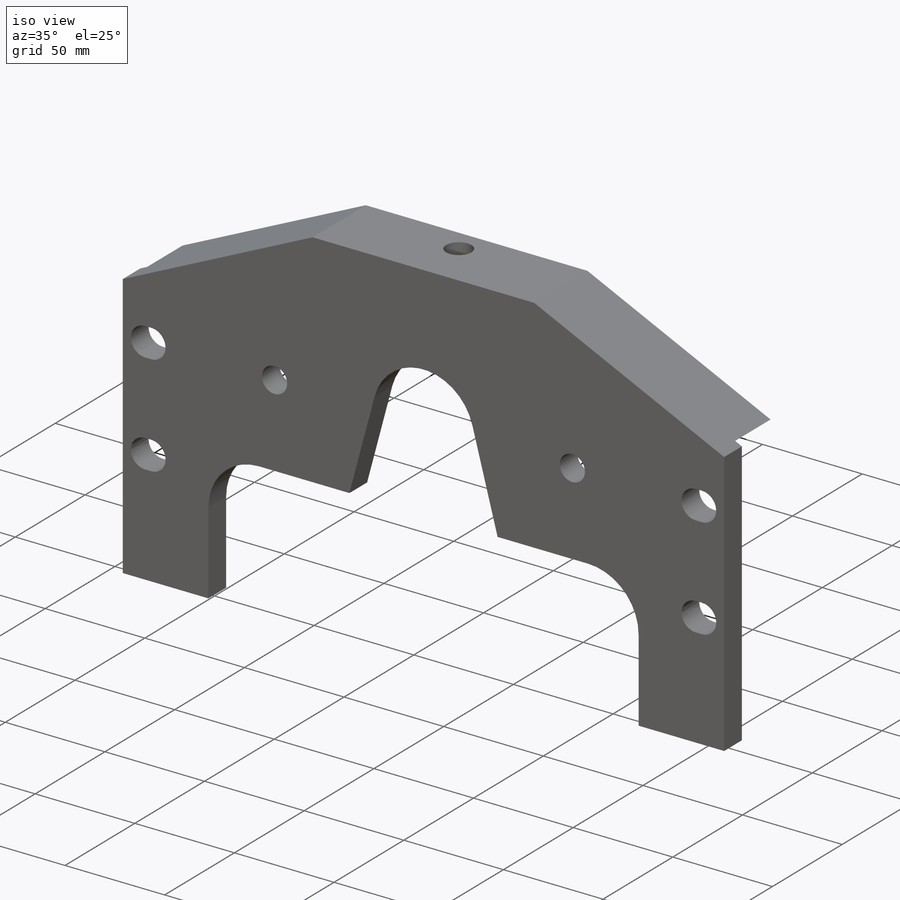
[diagram: iso view]
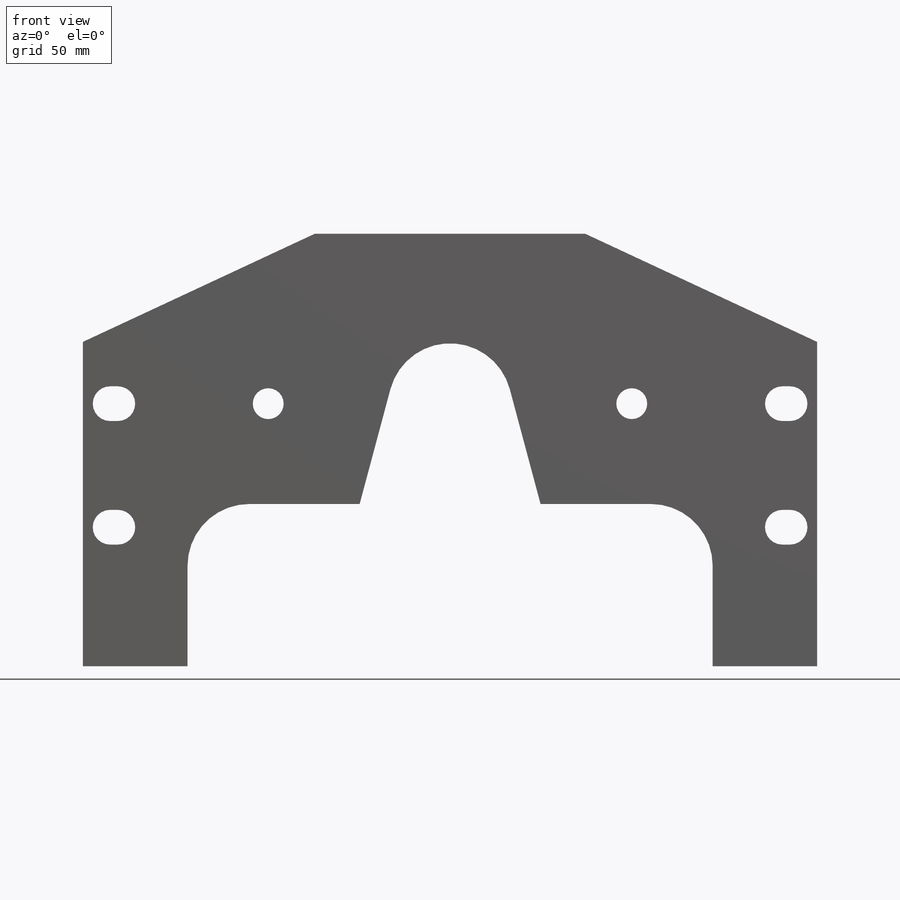
[diagram: front view]
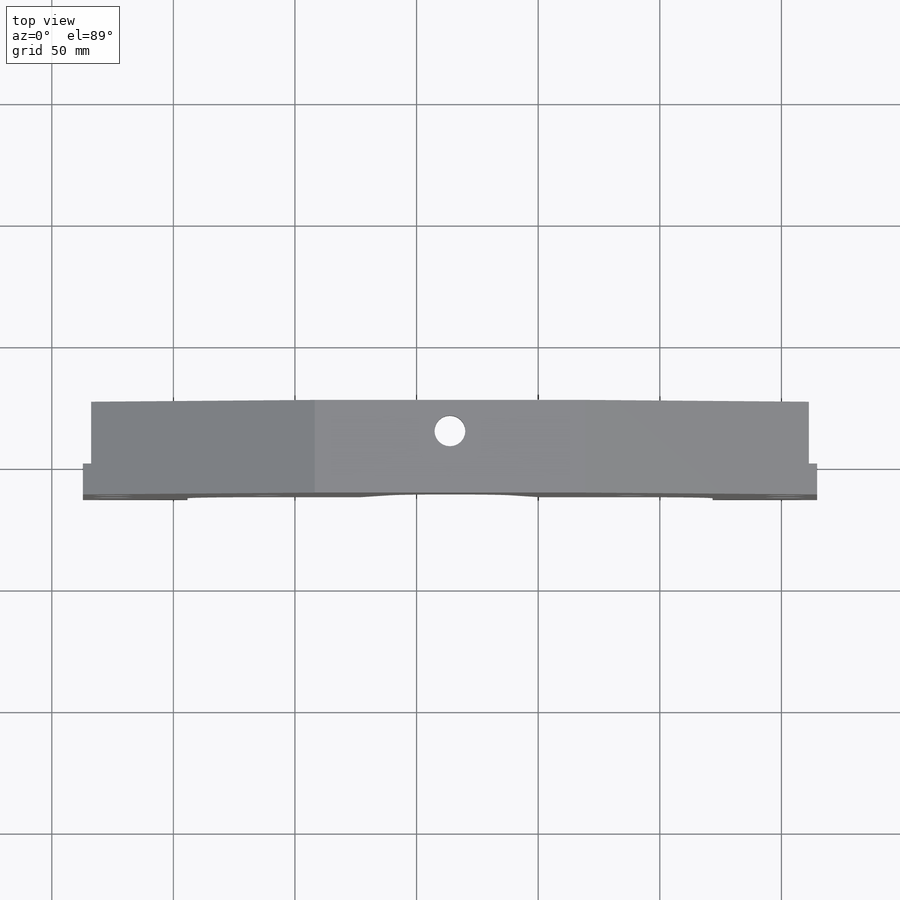
[diagram: top view]
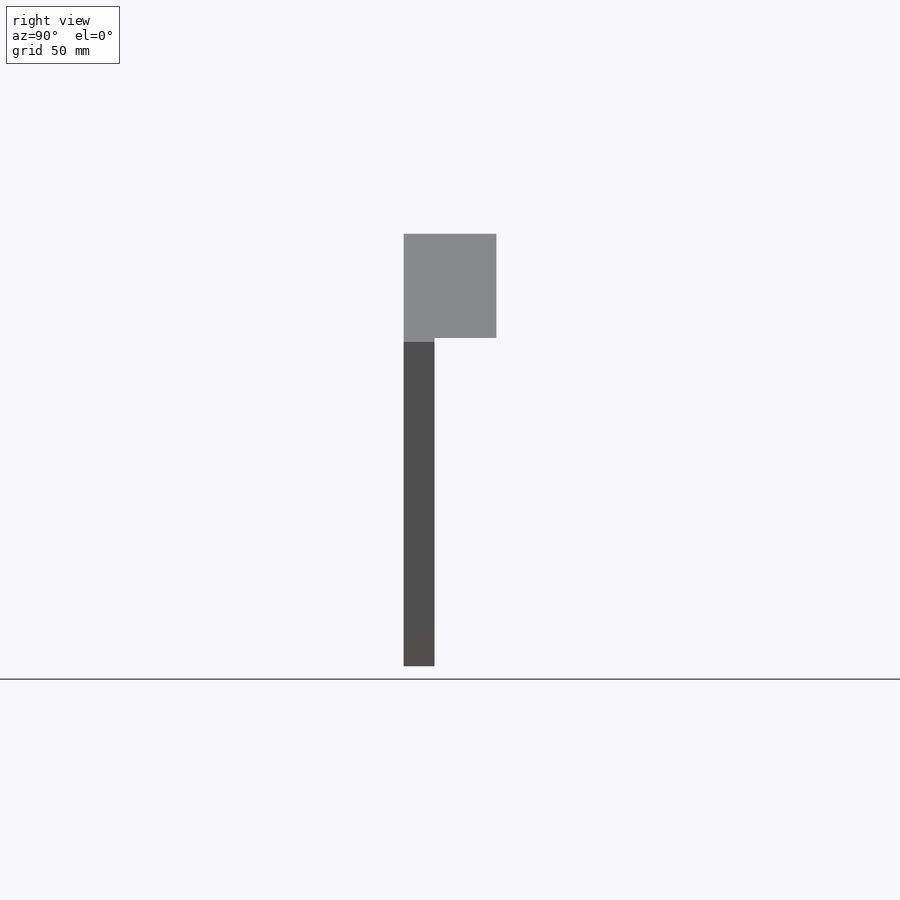
[diagram: right view]
SOLIDWORKS PART (.sldprt)
format: sldprt  version: not decoded by parser v0  size: 383,488 bytes
history: native  units: mm
features: sketch x12, cut_extrude x4, hole x3, plane x3, extrude x2, mirror x2, material x1 (+14 scaffold rows collapsed)
feature tree (41):
  scaffold x14  (default folders/planes/origin — collapsed)
  material  "AISI 1018 Steel, Cold Rolled"
  sketch  "Sketch1"  dims[c1.D1=314.325mm c1.D2=95.25mm c1.D3=~183.162005mm c2.D3=39.0deg c2.D4=~175.418048mm c3.D4=39.0deg c3.D5=274.574mm c3.D3=~121.082999mm c4.D3=115.0deg c4.D4=~76.767496mm c5.D4=115.0deg c5.D5=~71.220647mm c5.D6=95.25mm c5.D7=101.6mm c5.D1=133.35mm c5.D2=133.35mm c6.D5=~170.924828mm c6.D1=~333.197652mm c6.D3=101.6mm c7.D3=115.0deg c7.D4=~142.810187mm c8.D4=115.0deg c8.D1=~150.253801mm c9.D1=115.0deg c9.D3=133.35mm c9.D5=133.35mm c9.D6=~301.859074mm c10.D5=152.4mm c10.D7=38.1mm c10.D1=101.6mm c10.D2=177.8mm]
  extrude  "Base-Extrude"  Depth=12.7mm
  hole  "9/16 (0.5625) Diameter Hole1"  Diameter=14.2875mm Depth=12.7mm
  sketch  "Sketch7"  dims[c1.D1=12.7mm c1.D2=25.4mm c1.D3=50.8mm c1.D4=12.7mm c1.D5=12.7mm c1.D6=76.2mm c1.D7=12.7mm c2.D2=57.15mm c2.D6=63.5mm c2.D8=50.8mm c2.D5=203.2mm]
  sketch  "Sketch6"  dims[hole-wizard template sketch: 60 standard entries collapsed; hole parameters kept: c18.Thru Hole Depth=12.7mm]
  sketch  "Sketch8"  dims[c1.D1=25.4mm c1.D8=12.7mm c1.D9=12.7mm c1.D5=25.4mm c1.D3=12.7mm c2.D1=25.4mm c2.D2=88.9mm c2.D3=69.85mm c3.D1=139.7mm c4.D1=75.0deg c4.D2=~145.412158mm c5.D2=75.0deg c5.D3=101.6mm c5.D4=177.8mm c5.D6=68.2625mm c5.D7=157.1752mm c6.D2=~150.96998mm c6.D3=107.95mm c6.D4=107.95mm c6.D1=88.9mm c7.D2=25.4mm c7.D3=88.9mm c7.D4=101.6mm c7.D5=25.4mm c7.D6=50.8mm c7.D7=50.8mm c8.D6=25.4mm c8.D7=50.8mm c9.D6=25.4mm c9.D1=19.05mm c9.D2=19.05mm]
  cut_extrude  "Cut-Extrude1"  [1 undecoded]
  plane  "Plane4"
  plane  "Plane5"  Offset=150.96998mm
  mirror  "Mirror3"
  sketch  "Sketch10"  dims[D1=42.8752mm]
  extrude  "Boss-Extrude1"  Depth=25.4mm
  hole  "1/2-20 Tapped Hole1"  Diameter=12.7mm Depth=177.8mm
  sketch  "Sketch12"  dims[D1=55.5752mm D2=12.7mm]
  sketch  "Sketch11"  dims[hole-wizard template sketch: 60 standard entries collapsed; hole parameters kept: c18.Thru Tap Drill Depth=177.8mm]
  sketch  "Sketch13"  dims[D1=1.5875mm D2=1.5875mm]
  cut_extrude  "Cut-Extrude2"  [1 undecoded]
  sketch  "Sketch14"  dims[D1=1.5748mm D2=1.5748mm]
  cut_extrude  "Cut-Extrude3"  [1 undecoded]
  mirror  "Mirror4"
  hole  "1/2-20 Tapped Hole2"  Diameter=12.7mm Depth=38.100025mm
  sketch  "Sketch16"  dims[D1=76.2mm D2=107.95mm D3=76.2mm D4=107.95mm]
  sketch  "Sketch15"  dims[hole-wizard template sketch: 60 standard entries collapsed; hole parameters kept: c18.Thru Tap Drill Depth=~38.100025mm]
  sketch  "Sketch17"  dims[c1.D1=19.05mm c1.D2=19.05mm c1.D3=31.75mm c2.D2=3.175mm]
  cut_extrude  "Cut-Extrude4"  Depth=25.4mm
  plane  "CENTER Plane"
decode coverage: 18 of 23 modeling features carry decoded parameters
note: ~ marks probable driven/reference dimensions
note: 3 parameter values undecoded
summary: no parameter record found for 3 features
note: suppression state not decoded; provenance and decode notes live in map.json
